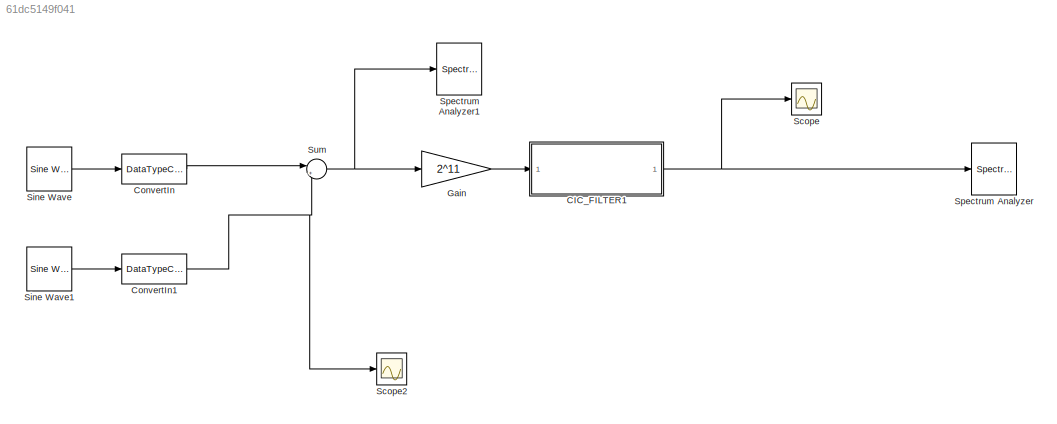
MODEL slx_61dc5149f041
KIND model
CONFIG AbsTol = auto
CONFIG EnableMultiTasking = off
CONFIG FixedStep = auto
CONFIG MaxStep = auto
CONFIG MinStep = auto
CONFIG RelTol = 1e-3
CONFIG SampleTimeConstraint = Unconstrained
CONFIG Solver = VariableStepAuto
CONFIG SolverName = VariableStepAuto
CONFIG StartTime = 0.0
CONFIG StopTime = 10.0
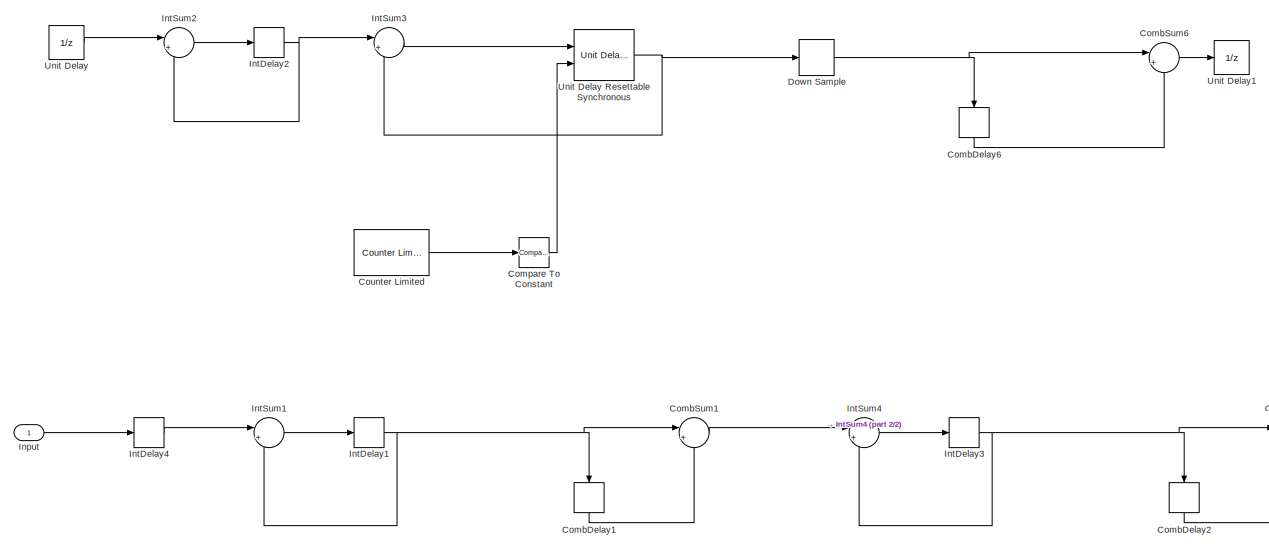
[diagram: CIC_FILTER1 - part 1/2, most of the canvas]
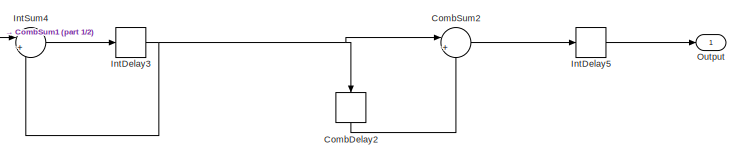
[diagram: CIC_FILTER1 - part 2/2, bottom right region]
BLOCK [SubSystem] CIC_FILTER1
  ErrorFcn = dspFilterRealizedInBasicElemsAlgLoopErrFcnCallback
  Ports = [1, 1]
  RequestExecContextInheritance = off
  Tag = FilterWizardSubSystem
  UserDataPersistent = on
BLOCK [Delay] CIC_FILTER1/CombDelay1
  DelayLength = 16
  InitialCondition = 0
  InputPortMap = u0
  Ports = [1, 1]
BLOCK [Delay] CIC_FILTER1/CombDelay2
  DelayLength = 16
  InitialCondition = 0
  InputPortMap = u0
  Ports = [1, 1]
BLOCK [Delay] CIC_FILTER1/CombDelay6
  Commented = on
  DelayLength = 1
  InitialCondition = 0
  InputPortMap = u0
  Ports = [1, 1]
BLOCK [Sum] CIC_FILTER1/CombSum1
  AccumDataTypeStr = fixdt(1,20,0)
  IconShape = round
  InputSameDT = off
  Inputs = |+-
  OutDataTypeStr = fixdt(1,20,0)
  Ports = [2, 1]
  SaturateOnIntegerOverflow = off
BLOCK [Sum] CIC_FILTER1/CombSum2
  AccumDataTypeStr = fixdt(1,20,0)
  IconShape = round
  InputSameDT = off
  Inputs = |+-
  OutDataTypeStr = fixdt(1,20,0)
  Ports = [2, 1]
  SaturateOnIntegerOverflow = off
BLOCK [Sum] CIC_FILTER1/CombSum6
  AccumDataTypeStr = fixdt(1,18,0)
  Commented = on
  IconShape = round
  InputSameDT = off
  Inputs = |+-
  OutDataTypeStr = fixdt(1,18,0)
  Ports = [2, 1]
  SaturateOnIntegerOverflow = off
BLOCK [Reference] CIC_FILTER1/Compare To Constant  REF=simulink/Logic and Bit
Operations/Compare
To Constant
  Commented = on
  Ports = [1, 1]
  SourceBlock = simulink/Logic and Bit\nOperations/Compare\nTo Constant
  SourceProductBaseCode = SL
  SourceProductName = Simulink
  SourceType = Compare To Constant
BLOCK [Reference] CIC_FILTER1/Counter Limited  REF=simulink/Sources/Counter
Limited
  Commented = on
  Ports = [0, 1]
  SourceBlock = simulink/Sources/Counter\nLimited
  SourceProductBaseCode = SL
  SourceProductName = Simulink
  SourceType = Counter Limited
BLOCK [DownSample] CIC_FILTER1/Down Sample
  Commented = on
  InputProcessing = Elements as channels (sample based)
  RateOptions = Allow multirate processing
BLOCK [Inport] CIC_FILTER1/Input
  IconDisplay = Port number
BLOCK [Delay] CIC_FILTER1/IntDelay1
  DelayLength = 1
  InitialCondition = 0
  InputPortMap = u0
  Ports = [1, 1]
BLOCK [Delay] CIC_FILTER1/IntDelay2
  Commented = on
  DelayLength = 1
  InitialCondition = 0
  InputPortMap = u0
  Ports = [1, 1]
BLOCK [Delay] CIC_FILTER1/IntDelay3
  DelayLength = 1
  InitialCondition = 0
  InputPortMap = u0
  Ports = [1, 1]
BLOCK [Delay] CIC_FILTER1/IntDelay4
  DelayLength = 1
  InitialCondition = 0
  InputPortMap = u0
  Ports = [1, 1]
BLOCK [Delay] CIC_FILTER1/IntDelay5
  DelayLength = 1
  InitialCondition = 0
  InputPortMap = u0
  Ports = [1, 1]
BLOCK [Sum] CIC_FILTER1/IntSum1
  AccumDataTypeStr = fixdt(1,20,0)
  IconShape = round
  InputSameDT = off
  Inputs = |++
  OutDataTypeStr = fixdt(1,20,0)
  Ports = [2, 1]
  SaturateOnIntegerOverflow = off
BLOCK [Sum] CIC_FILTER1/IntSum2
  AccumDataTypeStr = fixdt(1,18,0)
  Commented = on
  IconShape = round
  InputSameDT = off
  Inputs = |++
  OutDataTypeStr = fixdt(1,18,0)
  Ports = [2, 1]
  SaturateOnIntegerOverflow = off
BLOCK [Sum] CIC_FILTER1/IntSum3
  AccumDataTypeStr = fixdt(1,18,0)
  Commented = on
  IconShape = round
  InputSameDT = off
  Inputs = |++
  OutDataTypeStr = fixdt(1,18,0)
  Ports = [2, 1]
  SaturateOnIntegerOverflow = off
BLOCK [Sum] CIC_FILTER1/IntSum4
  AccumDataTypeStr = fixdt(1,20,0)
  IconShape = round
  InputSameDT = off
  Inputs = |++
  OutDataTypeStr = fixdt(1,20,0)
  Ports = [2, 1]
  SaturateOnIntegerOverflow = off
BLOCK [Outport] CIC_FILTER1/Output
  IconDisplay = Port number
BLOCK [UnitDelay] CIC_FILTER1/Unit Delay
  Commented = on
  InputProcessing = Elements as channels (sample based)
  SampleTime = -1
BLOCK [Reference] CIC_FILTER1/Unit Delay Resettable Synchronous  REF=hdlsllib/Discrete/Unit Delay Resettable
Synchronous
  Commented = on
  Ports = [2, 1]
  SourceBlock = hdlsllib/Discrete/Unit Delay Resettable\nSynchronous
  SourceProductBaseCode = HD
  SourceProductName = HDL Coder
  SourceType = Unit Delay Resettable Synchronous
BLOCK [UnitDelay] CIC_FILTER1/Unit Delay1
  Commented = on
  InputProcessing = Elements as channels (sample based)
  SampleTime = -1
BLOCK [DataTypeConversion] ConvertIn
  OutDataTypeStr = fixdt(1,11, 10)
  RndMeth = Nearest
BLOCK [DataTypeConversion] ConvertIn1
  OutDataTypeStr = fixdt(1,11, 10)
  RndMeth = Nearest
BLOCK [Gain] Gain
  Gain = 2^11
  OutDataTypeStr = fixdt(1, 16, 0)
  ParamDataTypeStr = Inherit: Inherit via internal rule
  SaturateOnIntegerOverflow = off
BLOCK [Scope] Scope
  Floating = off
  NumInputPorts = 1
  Ports = [1]
  ScopeSpecificationString = Simulink.scopes.TimeScopeBlockCfg('CurrentConfiguration', extmgr.ConfigurationSet(extmgr.Configuration('Core','General UI',true),extmgr.Configuration('Core','Source UI',true),extmgr.Configuration('Sources','WiredSimulink',true,'DataLoggingVariableName','ScopeData1'),extmgr.Configuration('Visuals','Time Domain',true,'SerializedDisplays',{struct('MinYLimReal','-3554258.00819','MaxYLimReal','3718106....<+1817ch>
BLOCK [Scope] Scope2
  Floating = off
  NumInputPorts = 1
  Ports = [1]
  ScopeSpecificationString = Simulink.scopes.TimeScopeBlockCfg('CurrentConfiguration', extmgr.ConfigurationSet(extmgr.Configuration('Core','General UI',true),extmgr.Configuration('Core','Source UI',true),extmgr.Configuration('Sources','WiredSimulink',true,'DataLoggingVariableName','ScopeData1'),extmgr.Configuration('Visuals','Time Domain',true,'SerializedDisplays',{struct('MinYLimReal','-0.54309','MaxYLimReal','0.59441','YLab...<+1768ch>
BLOCK [Reference] Sine Wave  REF=dspsrcs4/Sine Wave
  Ports = [0, 1]
  SourceBlock = dspsrcs4/Sine Wave
  SourceProductBaseCode = DS
  SourceProductName = DSP System Toolbox
  SourceType = Sine Wave
BLOCK [Reference] Sine Wave1  REF=dspsrcs4/Sine Wave
  Ports = [0, 1]
  SourceBlock = dspsrcs4/Sine Wave
  SourceProductBaseCode = DS
  SourceProductName = DSP System Toolbox
  SourceType = Sine Wave
BLOCK [SpectrumAnalyzer] Spectrum Analyzer
  Ports = [1]
  ScopeSpecificationString = spbscopes.SpectrumAnalyzerBlockCfg('CurrentConfiguration', extmgr.ConfigurationSet(extmgr.Configuration('Core','General UI',true),extmgr.Configuration('Core','Source UI',true),extmgr.Configuration('Sources','WiredSimulink',true),extmgr.Configuration('Visuals','Spectrum',true,'AxesProperties',struct('Color',{[0 0 0],[0 0 0]},'XColor',{[0.686274509803922 0.686274509803922 0.686274509803922],[0.68627...<+2561ch>
BLOCK [SpectrumAnalyzer] Spectrum Analyzer1
  Ports = [1]
  ScopeSpecificationString = spbscopes.SpectrumAnalyzerBlockCfg('CurrentConfiguration', extmgr.ConfigurationSet(extmgr.Configuration('Core','General UI',true),extmgr.Configuration('Core','Source UI',true),extmgr.Configuration('Sources','WiredSimulink',true),extmgr.Configuration('Visuals','Spectrum',true,'AxesProperties',struct('Color',{[0 0 0],[0 0 0]},'XColor',{[0.686274509803922 0.686274509803922 0.686274509803922],[0.68627...<+2560ch>
BLOCK [Sum] Sum
  IconShape = round
  Inputs = |++
  OutDataTypeStr = fixdt(1,12, 11)
  Ports = [2, 1]
LINE CIC_FILTER1/CombDelay1:1 -> CIC_FILTER1/CombSum1:2
LINE CIC_FILTER1/CombDelay2:1 -> CIC_FILTER1/CombSum2:2
LINE CIC_FILTER1/CombDelay6:1 -> CIC_FILTER1/CombSum6:2
LINE CIC_FILTER1/CombSum1:1 -> CIC_FILTER1/IntSum4:1
LINE CIC_FILTER1/CombSum2:1 -> CIC_FILTER1/IntDelay5:1
LINE CIC_FILTER1/CombSum6:1 -> CIC_FILTER1/Unit Delay1:1
LINE CIC_FILTER1/Compare To Constant:1 -> CIC_FILTER1/Unit Delay Resettable Synchronous:2
LINE CIC_FILTER1/Counter Limited:1 -> CIC_FILTER1/Compare To Constant:1
NET CIC_FILTER1/Down Sample:1 -> CIC_FILTER1/CombDelay6:1, CIC_FILTER1/CombSum6:1
LINE CIC_FILTER1/Input:1 -> CIC_FILTER1/IntDelay4:1
NET CIC_FILTER1/IntDelay1:1 -> CIC_FILTER1/CombDelay1:1, CIC_FILTER1/CombSum1:1, CIC_FILTER1/IntSum1:2
NET CIC_FILTER1/IntDelay2:1 -> CIC_FILTER1/IntSum2:2, CIC_FILTER1/IntSum3:1
NET CIC_FILTER1/IntDelay3:1 -> CIC_FILTER1/CombDelay2:1, CIC_FILTER1/CombSum2:1, CIC_FILTER1/IntSum4:2
LINE CIC_FILTER1/IntDelay4:1 -> CIC_FILTER1/IntSum1:1
LINE CIC_FILTER1/IntDelay5:1 -> CIC_FILTER1/Output:1
LINE CIC_FILTER1/IntSum1:1 -> CIC_FILTER1/IntDelay1:1
LINE CIC_FILTER1/IntSum2:1 -> CIC_FILTER1/IntDelay2:1
LINE CIC_FILTER1/IntSum3:1 -> CIC_FILTER1/Unit Delay Resettable Synchronous:1
LINE CIC_FILTER1/IntSum4:1 -> CIC_FILTER1/IntDelay3:1
NET CIC_FILTER1/Unit Delay Resettable Synchronous:1 -> CIC_FILTER1/Down Sample:1, CIC_FILTER1/IntSum3:2
LINE CIC_FILTER1/Unit Delay:1 -> CIC_FILTER1/IntSum2:1
NET CIC_FILTER1:1 -> Scope:1, Spectrum Analyzer:1
NET ConvertIn1:1 -> Scope2:1, Sum:2
LINE ConvertIn:1 -> Sum:1
LINE Gain:1 -> CIC_FILTER1:1
LINE Sine Wave1:1 -> ConvertIn1:1
LINE Sine Wave:1 -> ConvertIn:1
NET Sum:1 -> Gain:1, Spectrum Analyzer1:1
note: NET lines group one-source signal fan-out (src -> all destinations, sorted); 1:1 wires keep LINE
